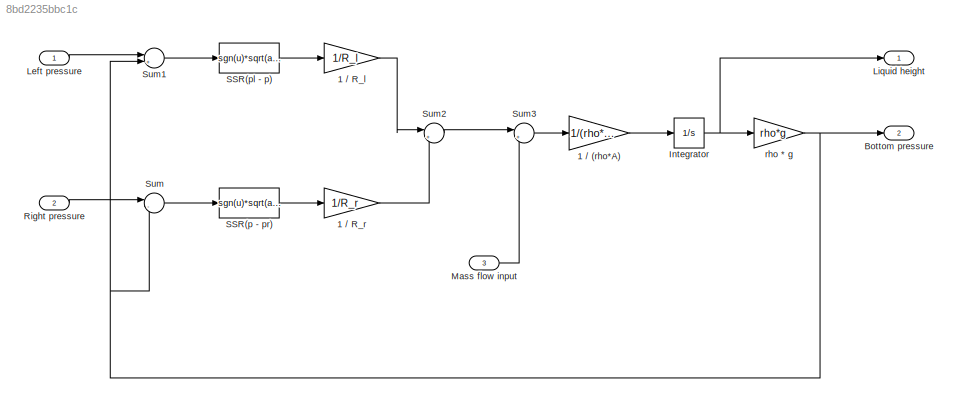
MODEL slx_8bd2235bbc1c
KIND model
CONFIG AbsTol = auto
CONFIG EnableMultiTasking = off
CONFIG FixedStep = auto
CONFIG MaxStep = auto
CONFIG MinStep = auto
CONFIG RelTol = 1e-3
CONFIG SampleTimeConstraint = Unconstrained
CONFIG Solver = VariableStepAuto
CONFIG SolverName = VariableStepAuto
CONFIG StartTime = 0.0
CONFIG StopTime = 10.0
BLOCK [Gain] 1 // (rho*A)
  Gain = 1/(rho*A)
BLOCK [Gain] 1 // R_l
  Gain = 1/R_l
BLOCK [Gain] 1 // R_r
  Gain = 1/R_r
BLOCK [Outport] Bottom pressure
  Port = 2
BLOCK [Integrator] Integrator
  InitialCondition = h_0
  Ports = [1, 1]
BLOCK [Inport] Left pressure
BLOCK [Outport] Liquid height
BLOCK [Inport] Mass flow input
  Port = 3
BLOCK [Inport] Right pressure
  Port = 2
BLOCK [Fcn] SSR(p - pr)
  Expr = sgn(u)*sqrt(abs(u))
BLOCK [Fcn] SSR(pl - p)
  Expr = sgn(u)*sqrt(abs(u))
BLOCK [Sum] Sum
  Inputs = |-+
  Ports = [2, 1]
BLOCK [Sum] Sum1
  Inputs = |+-
  Ports = [2, 1]
BLOCK [Sum] Sum2
  Inputs = |+-
  Ports = [2, 1]
BLOCK [Sum] Sum3
  Inputs = |++
  Ports = [2, 1]
BLOCK [Gain] rho * g
  Gain = rho*g
LINE 1 // (rho*A):1 -> Integrator:1
LINE 1 // R_l:1 -> Sum2:1
LINE 1 // R_r:1 -> Sum2:2
NET Integrator:1 -> Liquid height:1, rho * g:1
LINE Left pressure:1 -> Sum1:1
LINE Mass flow input:1 -> Sum3:2
LINE Right pressure:1 -> Sum:1
LINE SSR(p - pr):1 -> 1 // R_r:1
LINE SSR(pl - p):1 -> 1 // R_l:1
LINE Sum1:1 -> SSR(pl - p):1
LINE Sum2:1 -> Sum3:1
LINE Sum3:1 -> 1 // (rho*A):1
LINE Sum:1 -> SSR(p - pr):1
NET rho * g:1 -> Bottom pressure:1, Sum1:2, Sum:2
note: NET lines group one-source signal fan-out (src -> all destinations, sorted); 1:1 wires keep LINE
